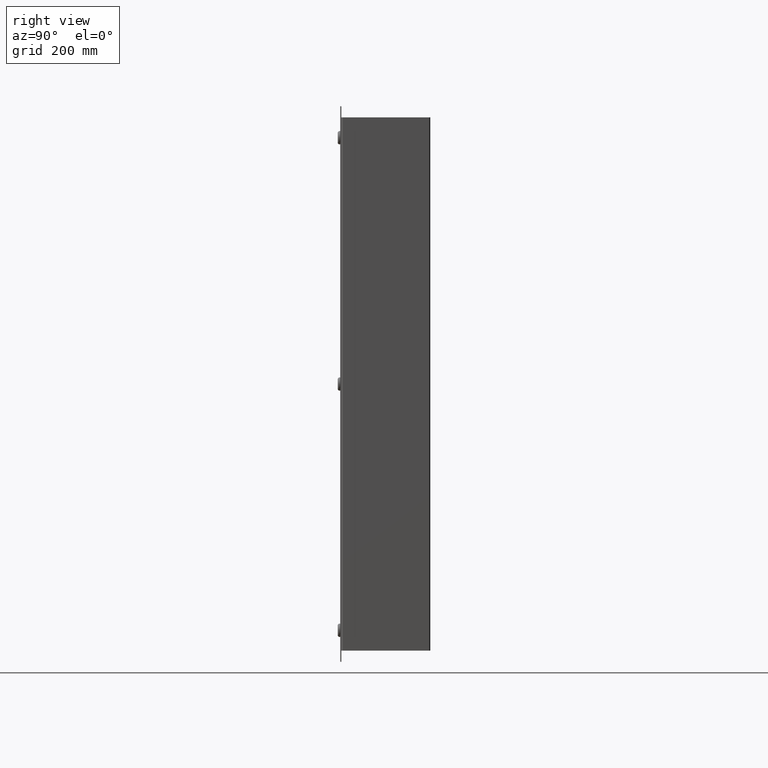
[diagram: clean part render]
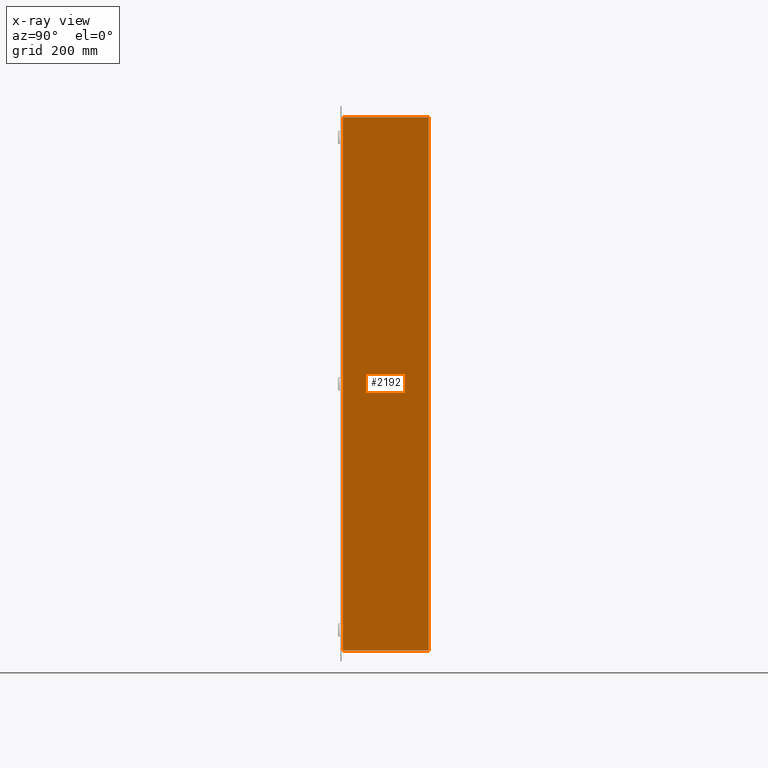
[diagram: x-ray — body ghosted, one internal face saturated and labeled with its STEP entity id]
A machine part, right view, then the same camera in x-ray: the body is ghosted and one INTERNAL B-rep face — a face not visible from any outside direction — is saturated and labeled: STEP entity #2192.
In plain terms, the highlighted planar face has unit normal (1, -0, 0).
Its self-contained STEP definition (entity closure, byte-faithful):
#2192 = ADVANCED_FACE( '', ( #4255 ), #4256, .F. );
#4255 = FACE_OUTER_BOUND( '', #32086, .T. );
#4256 = PLANE( '', #32087 );
#32086 = EDGE_LOOP( '', ( #38395, #38396, #38397, #38398 ) );
#32087 = AXIS2_PLACEMENT_3D( '', #38399, #38400, #38401 );
#38395 = ORIENTED_EDGE( '', *, *, #40851, .F. );
#38396 = ORIENTED_EDGE( '', *, *, #39475, .F. );
#38397 = ORIENTED_EDGE( '', *, *, #40450, .F. );
#38398 = ORIENTED_EDGE( '', *, *, #40055, .F. );
#38399 = CARTESIAN_POINT( '', ( 379.095000000000, -2.32128739161383E-014, 0.000000000000000 ) );
#38400 = DIRECTION( '', ( 1.00000000000000, -6.12323399573677E-017, 0.000000000000000 ) );
#38401 = DIRECTION( '', ( 6.12323399573677E-017, 1.00000000000000, 0.000000000000000 ) );
#39475 = EDGE_CURVE( '', #41912, #41914, #41915, .T. );
#40055 = EDGE_CURVE( '', #42804, #42806, #42807, .T. );
#40450 = EDGE_CURVE( '', #42806, #41912, #43339, .T. );
#40851 = EDGE_CURVE( '', #41914, #42804, #43806, .T. );
#41912 = VERTEX_POINT( '', #46120 );
#41914 = VERTEX_POINT( '', #46122 );
#41915 = LINE( '', #46123, #46124 );
#42804 = VERTEX_POINT( '', #48114 );
#42806 = VERTEX_POINT( '', #48116 );
#42807 = LINE( '', #48117, #48118 );
#43339 = LINE( '', #49265, #49266 );
#43806 = LINE( '', #50292, #50293 );
#46120 = CARTESIAN_POINT( '', ( 379.095000000000, -2.71780000000000, 457.200000000000 ) );
#46122 = CARTESIAN_POINT( '', ( 379.095000000000, -149.682200000000, 457.200000000000 ) );
#46123 = CARTESIAN_POINT( '', ( 379.095000000000, -1.70239013046996, 457.200000000000 ) );
#46124 = VECTOR( '', #50990, 1000.00000000000 );
#48114 = CARTESIAN_POINT( '', ( 379.095000000000, -149.682200000000, -457.200000000000 ) );
#48116 = CARTESIAN_POINT( '', ( 379.095000000000, -2.71780000000000, -457.200000000000 ) );
#48117 = CARTESIAN_POINT( '', ( 379.095000000000, -1.70239013046996, -457.200000000000 ) );
#48118 = VECTOR( '', #51566, 1000.00000000000 );
#49265 = CARTESIAN_POINT( '', ( 379.095000000000, -2.71780000000000, -457.200000000000 ) );
#49266 = VECTOR( '', #51941, 1000.00000000000 );
#50292 = CARTESIAN_POINT( '', ( 379.095000000000, -149.682200000000, 457.200000000000 ) );
#50293 = VECTOR( '', #52211, 1000.00000000000 );
#50990 = DIRECTION( '', ( -6.12323399573677E-017, -1.00000000000000, 7.36722384373819E-016 ) );
#51566 = DIRECTION( '', ( 6.12323399573677E-017, 1.00000000000000, 0.000000000000000 ) );
#51941 = DIRECTION( '', ( 0.000000000000000, 0.000000000000000, 1.00000000000000 ) );
#52211 = DIRECTION( '', ( 0.000000000000000, 0.000000000000000, -1.00000000000000 ) );